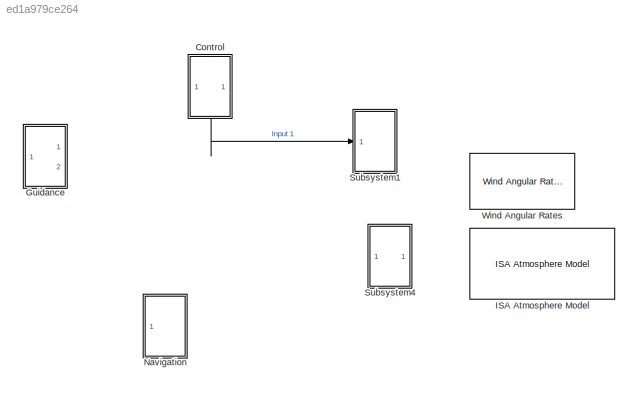
MODEL slx_ed1a979ce264
KIND model
CONFIG AbsTol = auto
CONFIG EnableMultiTasking = off
CONFIG FixedStep = auto
CONFIG MaxStep = auto
CONFIG MinStep = auto
CONFIG RelTol = 1e-3
CONFIG SampleTimeConstraint = Unconstrained
CONFIG SolverName = VariableStepAuto
CONFIG StartTime = 0.0
CONFIG StopTime = 10.0
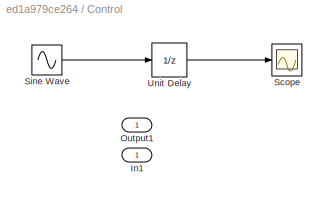
BLOCK [SubSystem] Control
  PortSchema = {"entries":[{"content":{"sides":[{"content":{"connectorIds":["Out1","In1"]},"type":"ConnectorPlacement.EquallySpacedRectSide","uuid":"ac5cbbab-1d56-4618-9258-c47c90f82337"},{"content":{"connectorIds":[],"side":"RIGHT"},"type":"ConnectorPlacement.EquallySpacedRectSide","uuid":"2cf9efa2-7fb6-4524-9ce3-c515f971457d"},{"content":{"connectorIds":[],"side":"TOP"},"type":"ConnectorPlacement.EquallySpaced...<+385ch>
  Ports = [1, 1]
  RequestExecContextInheritance = off
BLOCK [Inport] Control/In1
BLOCK [Outport] Control/Output1
BLOCK [Scope] Control/Scope
  Floating = off
  NumInputPorts = 1
  Ports = [1]
  ScopeSpecificationString = Simulink.scopes.TimeScopeBlockCfg('CurrentConfiguration', extmgr.ConfigurationSet(extmgr.Configuration('Core','General UI',true),extmgr.Configuration('Core','Source UI',true),extmgr.Configuration('Sources','WiredSimulink',true),extmgr.Configuration('Visuals','Time Domain',true),extmgr.Configuration('Tools','Plot Navigation',true),extmgr.Configuration('Tools','Measurements',true)),'Version','2020b'...<+1ch>  <repeated x5 — deduplicated; at blocks: Scope>
BLOCK [Sin] Control/Sine Wave
  Ports = [0, 1]
  SampleTime = 0
BLOCK [UnitDelay] Control/Unit Delay
  HasFrameUpgradeWarning = on
  SampleTime = -1
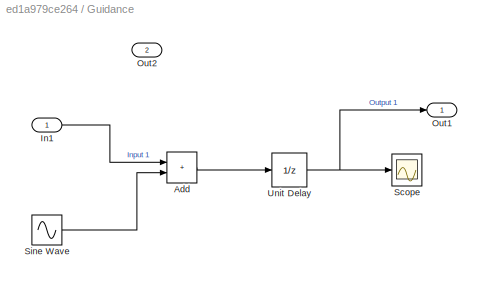
BLOCK [SubSystem] Guidance
  Ports = [1, 2]
  RequestExecContextInheritance = off
BLOCK [Sum] Guidance/Add
  IconShape = rectangular
  Ports = [2, 1]
BLOCK [Inport] Guidance/In1
BLOCK [Outport] Guidance/Out1
BLOCK [Outport] Guidance/Out2
  IconDisplay = Signal name
  Port = 2
BLOCK [Scope] Guidance/Scope
  Floating = off
  NumInputPorts = 1
  Ports = [1]
BLOCK [Sin] Guidance/Sine Wave
  Ports = [0, 1]
  SampleTime = 0
BLOCK [UnitDelay] Guidance/Unit Delay
  HasFrameUpgradeWarning = on
  SampleTime = -1
BLOCK [Reference] ISA Atmosphere Model  REF=aerolibatmos2/ISA Atmosphere Model
  Ports = [1, 4]
  SourceBlock = aerolibatmos2/ISA Atmosphere Model
  SourceProductBaseCode = AE
  SourceType = International Standard Atmosphere Model
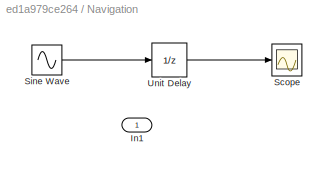
BLOCK [SubSystem] Navigation
  Ports = [1]
  RequestExecContextInheritance = off
BLOCK [Inport] Navigation/In1
BLOCK [Scope] Navigation/Scope
  Floating = off
  NumInputPorts = 1
  Ports = [1]
BLOCK [Sin] Navigation/Sine Wave
  Ports = [0, 1]
  SampleTime = 0
BLOCK [UnitDelay] Navigation/Unit Delay
  HasFrameUpgradeWarning = on
  SampleTime = -1
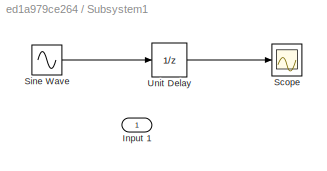
BLOCK [SubSystem] Subsystem1
  Ports = [1]
  RequestExecContextInheritance = off
BLOCK [Inport] Subsystem1/Input 1
BLOCK [Scope] Subsystem1/Scope
  Floating = off
  NumInputPorts = 1
  Ports = [1]
BLOCK [Sin] Subsystem1/Sine Wave
  Ports = [0, 1]
  SampleTime = 0
BLOCK [UnitDelay] Subsystem1/Unit Delay
  HasFrameUpgradeWarning = on
  SampleTime = -1
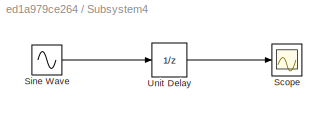
BLOCK [SubSystem] Subsystem4
  Ports = []
  RequestExecContextInheritance = off
BLOCK [Scope] Subsystem4/Scope
  Floating = off
  NumInputPorts = 1
  Ports = [1]
BLOCK [Sin] Subsystem4/Sine Wave
  Ports = [0, 1]
  SampleTime = 0
BLOCK [UnitDelay] Subsystem4/Unit Delay
  HasFrameUpgradeWarning = on
  SampleTime = -1
BLOCK [Reference] Wind Angular Rates  REF=aerolibasang/Wind Angular Rates
  Ports = [3, 1]
  SourceBlock = aerolibasang/Wind Angular Rates
  SourceProductBaseCode = AE
  SourceType = Wind Angular Rates
LINE Control/Sine Wave:1 -> Control/Unit Delay:1
LINE Control/Unit Delay:1 -> Control/Scope:1
LINE Control:1 -> Subsystem1:1
LINE Guidance/Add:1 -> Guidance/Unit Delay:1
LINE Guidance/In1:1 -> Guidance/Add:1
LINE Guidance/Sine Wave:1 -> Guidance/Add:2
NET Guidance/Unit Delay:1 -> Guidance/Out1:1, Guidance/Scope:1
LINE Navigation/Sine Wave:1 -> Navigation/Unit Delay:1
LINE Navigation/Unit Delay:1 -> Navigation/Scope:1
LINE Subsystem1/Sine Wave:1 -> Subsystem1/Unit Delay:1
LINE Subsystem1/Unit Delay:1 -> Subsystem1/Scope:1
LINE Subsystem4/Sine Wave:1 -> Subsystem4/Unit Delay:1
LINE Subsystem4/Unit Delay:1 -> Subsystem4/Scope:1
note: NET lines group one-source signal fan-out (src -> all destinations, sorted); 1:1 wires keep LINE
